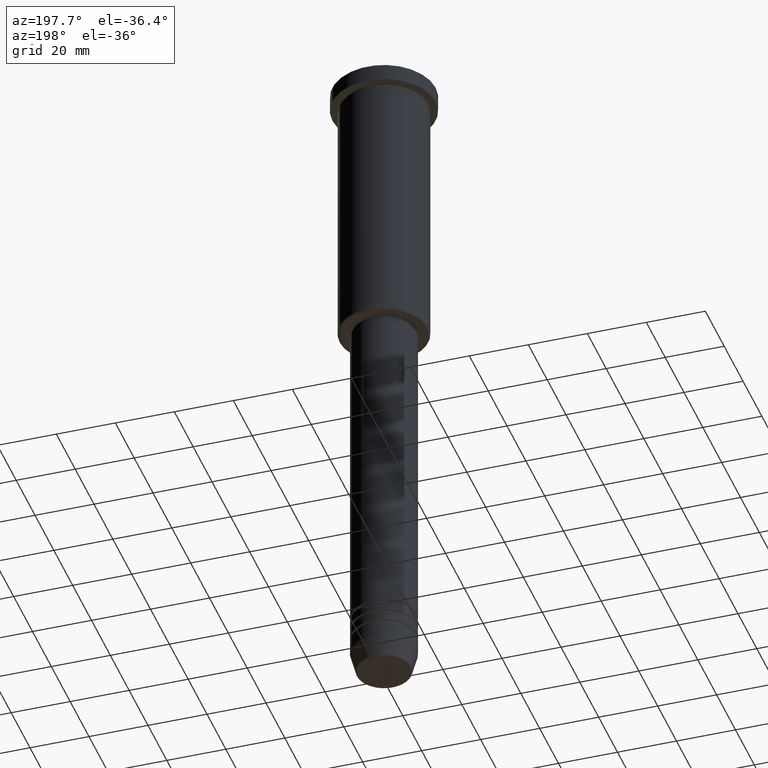
[diagram: clean part render]
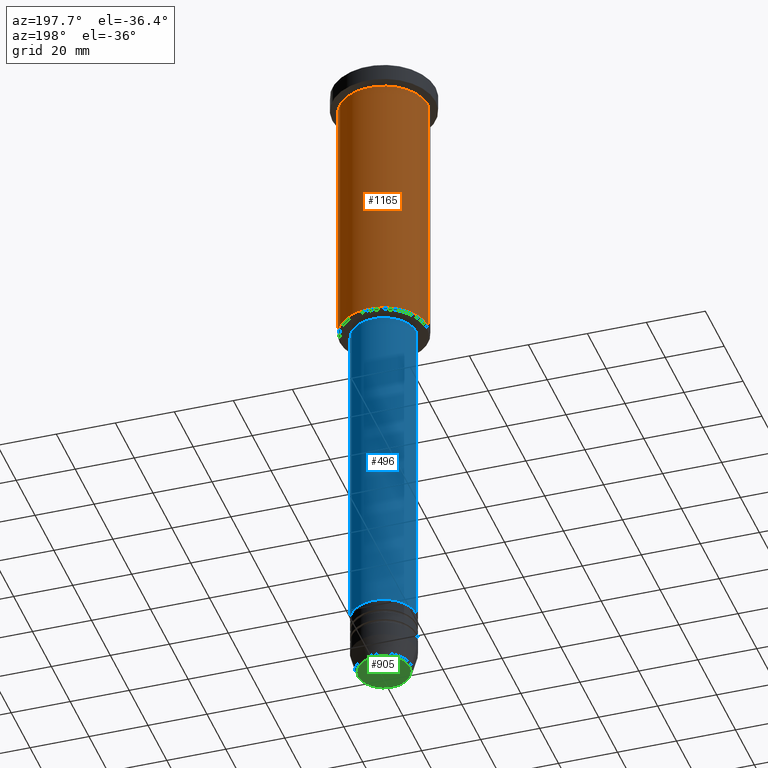
[diagram: same view with three faces highlighted in distinct colors, each labeled with its STEP entity id]
A machine part, auxiliary view with three faces highlighted in distinct colors.
Their STEP definitions:

[orange] entity #1165 — the highlighted cylindrical surface (partial cylindrical patch) has radius 15 mm, axis along (-0, -0, 1).
#32 = CARTESIAN_POINT ( 'NONE',  ( -15.00000000000000000, 1.836970198721029589E-15, 0.000000000000000000 ) ) ;
#51 = DIRECTION ( 'NONE',  ( -0.000000000000000000, -0.000000000000000000, 1.000000000000000000 ) ) ;
#158 = VECTOR ( 'NONE', #51, 1000.000000000000000 ) ;
#227 = AXIS2_PLACEMENT_3D ( 'NONE', #809, #1176, #714 ) ;
#281 = CARTESIAN_POINT ( 'NONE',  ( 0.000000000000000000, 0.000000000000000000, -95.49999999999995737 ) ) ;
#290 = DIRECTION ( 'NONE',  ( -0.000000000000000000, -0.000000000000000000, 1.000000000000000000 ) ) ;
#311 = AXIS2_PLACEMENT_3D ( 'NONE', #931, #987, #737 ) ;
#350 = VERTEX_POINT ( 'NONE', #386 ) ;
#379 = VECTOR ( 'NONE', #1163, 1000.000000000000000 ) ;
#386 = CARTESIAN_POINT ( 'NONE',  ( -15.00000000000000000, 1.836970198721029589E-15, -6.999999999999995559 ) ) ;
#401 = AXIS2_PLACEMENT_3D ( 'NONE', #281, #290, #947 ) ;
#448 = EDGE_CURVE ( 'NONE', #687, #719, #645, .T. ) ;
#480 = CARTESIAN_POINT ( 'NONE',  ( 15.00000000000000000, 0.000000000000000000, -95.49999999999995737 ) ) ;
#502 = ORIENTED_EDGE ( 'NONE', *, *, #934, .T. ) ;
#540 = FACE_OUTER_BOUND ( 'NONE', #815, .T. ) ;
#587 = CARTESIAN_POINT ( 'NONE',  ( -15.00000000000000000, 1.836970198721029589E-15, -95.49999999999995737 ) ) ;
#602 = ORIENTED_EDGE ( 'NONE', *, *, #874, .F. ) ;
#609 = CARTESIAN_POINT ( 'NONE',  ( 15.00000000000000000, 0.000000000000000000, 0.000000000000000000 ) ) ;
#645 = LINE ( 'NONE', #609, #379 ) ;
#681 = LINE ( 'NONE', #32, #158 ) ;
#682 = CARTESIAN_POINT ( 'NONE',  ( 15.00000000000000000, 0.000000000000000000, -6.999999999999995559 ) ) ;
#687 = VERTEX_POINT ( 'NONE', #480 ) ;
#692 = CIRCLE ( 'NONE', #401, 15.00000000000000000 ) ;
#714 = DIRECTION ( 'NONE',  ( 1.000000000000000000, 0.000000000000000000, 0.000000000000000000 ) ) ;
#719 = VERTEX_POINT ( 'NONE', #682 ) ;
#727 = VERTEX_POINT ( 'NONE', #587 ) ;
#735 = EDGE_CURVE ( 'NONE', #727, #350, #681, .T. ) ;
#737 = DIRECTION ( 'NONE',  ( 1.000000000000000000, 0.000000000000000000, 0.000000000000000000 ) ) ;
#746 = CIRCLE ( 'NONE', #227, 15.00000000000000000 ) ;
#809 = CARTESIAN_POINT ( 'NONE',  ( 0.000000000000000000, 0.000000000000000000, -6.999999999999995559 ) ) ;
#815 = EDGE_LOOP ( 'NONE', ( #502, #924, #602, #1024 ) ) ;
#874 = EDGE_CURVE ( 'NONE', #719, #350, #746, .T. ) ;
#924 = ORIENTED_EDGE ( 'NONE', *, *, #735, .T. ) ;
#931 = CARTESIAN_POINT ( 'NONE',  ( 0.000000000000000000, 0.000000000000000000, 0.000000000000000000 ) ) ;
#934 = EDGE_CURVE ( 'NONE', #687, #727, #692, .T. ) ;
#947 = DIRECTION ( 'NONE',  ( -1.000000000000000000, 0.000000000000000000, 0.000000000000000000 ) ) ;
#987 = DIRECTION ( 'NONE',  ( -0.000000000000000000, -0.000000000000000000, 1.000000000000000000 ) ) ;
#992 = CYLINDRICAL_SURFACE ( 'NONE', #311, 15.00000000000000000 ) ;
#1024 = ORIENTED_EDGE ( 'NONE', *, *, #448, .F. ) ;
#1163 = DIRECTION ( 'NONE',  ( -0.000000000000000000, -0.000000000000000000, 1.000000000000000000 ) ) ;
#1165 = ADVANCED_FACE ( 'NONE', ( #540 ), #992, .T. ) ;
#1176 = DIRECTION ( 'NONE',  ( -0.000000000000000000, -0.000000000000000000, 1.000000000000000000 ) ) ;

[blue] entity #496 — the highlighted cylindrical surface (edge-blend (fillet) strip) has radius 11 mm, axis along (-0, -0, 1).
#11 = VERTEX_POINT ( 'NONE', #613 ) ;
#59 = CARTESIAN_POINT ( 'NONE',  ( -11.00000000000000000, 1.347111479062088405E-15, -97.00000000000005684 ) ) ;
#95 = CARTESIAN_POINT ( 'NONE',  ( 0.000000000000000000, 0.000000000000000000, 0.000000000000000000 ) ) ;
#111 = ORIENTED_EDGE ( 'NONE', *, *, #200, .F. ) ;
#129 = EDGE_LOOP ( 'NONE', ( #995, #1132, #111, #703 ) ) ;
#159 = CIRCLE ( 'NONE', #913, 11.00000000000000000 ) ;
#162 = DIRECTION ( 'NONE',  ( -0.000000000000000000, -0.000000000000000000, 1.000000000000000000 ) ) ;
#187 = VECTOR ( 'NONE', #214, 1000.000000000000000 ) ;
#200 = EDGE_CURVE ( 'NONE', #317, #378, #451, .T. ) ;
#214 = DIRECTION ( 'NONE',  ( -0.000000000000000000, -0.000000000000000000, 1.000000000000000000 ) ) ;
#279 = FACE_OUTER_BOUND ( 'NONE', #129, .T. ) ;
#283 = CARTESIAN_POINT ( 'NONE',  ( 11.00000000000000000, 0.000000000000000000, -97.00000000000005684 ) ) ;
#285 = VECTOR ( 'NONE', #162, 1000.000000000000000 ) ;
#317 = VERTEX_POINT ( 'NONE', #283 ) ;
#378 = VERTEX_POINT ( 'NONE', #59 ) ;
#392 = DIRECTION ( 'NONE',  ( 1.000000000000000000, 0.000000000000000000, 0.000000000000000000 ) ) ;
#441 = DIRECTION ( 'NONE',  ( -0.000000000000000000, -0.000000000000000000, 1.000000000000000000 ) ) ;
#449 = DIRECTION ( 'NONE',  ( 1.000000000000000000, 0.000000000000000000, 0.000000000000000000 ) ) ;
#451 = CIRCLE ( 'NONE', #1135, 11.00000000000000000 ) ;
#468 = LINE ( 'NONE', #1109, #187 ) ;
#496 = ADVANCED_FACE ( 'NONE', ( #279 ), #944, .T. ) ;
#524 = AXIS2_PLACEMENT_3D ( 'NONE', #95, #646, #449 ) ;
#613 = CARTESIAN_POINT ( 'NONE',  ( 11.00000000000000000, 0.000000000000000000, -209.9999999999999432 ) ) ;
#646 = DIRECTION ( 'NONE',  ( -0.000000000000000000, -0.000000000000000000, 1.000000000000000000 ) ) ;
#668 = CARTESIAN_POINT ( 'NONE',  ( 0.000000000000000000, 0.000000000000000000, -97.00000000000005684 ) ) ;
#703 = ORIENTED_EDGE ( 'NONE', *, *, #925, .F. ) ;
#712 = CARTESIAN_POINT ( 'NONE',  ( -11.00000000000000000, 1.347111479062088405E-15, -209.9999999999999432 ) ) ;
#750 = EDGE_CURVE ( 'NONE', #1027, #378, #1063, .T. ) ;
#792 = CARTESIAN_POINT ( 'NONE',  ( 0.000000000000000000, 0.000000000000000000, -209.9999999999999432 ) ) ;
#875 = CARTESIAN_POINT ( 'NONE',  ( -11.00000000000000000, 1.347111479062088405E-15, 0.000000000000000000 ) ) ;
#913 = AXIS2_PLACEMENT_3D ( 'NONE', #792, #441, #1175 ) ;
#925 = EDGE_CURVE ( 'NONE', #11, #317, #468, .T. ) ;
#944 = CYLINDRICAL_SURFACE ( 'NONE', #524, 11.00000000000000000 ) ;
#995 = ORIENTED_EDGE ( 'NONE', *, *, #1003, .T. ) ;
#1003 = EDGE_CURVE ( 'NONE', #11, #1027, #159, .T. ) ;
#1027 = VERTEX_POINT ( 'NONE', #712 ) ;
#1045 = DIRECTION ( 'NONE',  ( -0.000000000000000000, -0.000000000000000000, 1.000000000000000000 ) ) ;
#1063 = LINE ( 'NONE', #875, #285 ) ;
#1109 = CARTESIAN_POINT ( 'NONE',  ( 11.00000000000000000, 0.000000000000000000, 0.000000000000000000 ) ) ;
#1132 = ORIENTED_EDGE ( 'NONE', *, *, #750, .T. ) ;
#1135 = AXIS2_PLACEMENT_3D ( 'NONE', #668, #1045, #392 ) ;
#1175 = DIRECTION ( 'NONE',  ( 1.000000000000000000, 0.000000000000000000, 0.000000000000000000 ) ) ;

[green] entity #905 — the highlighted planar face has unit normal (0, -0, 1).
#77 = VERTEX_POINT ( 'NONE', #882 ) ;
#113 = DIRECTION ( 'NONE',  ( 1.000000000000000000, 0.000000000000000000, 0.000000000000000000 ) ) ;
#195 = CARTESIAN_POINT ( 'NONE',  ( 0.000000000000000000, 0.000000000000000000, -231.0000000000000284 ) ) ;
#204 = CIRCLE ( 'NONE', #926, 8.740692158992656502 ) ;
#304 = DIRECTION ( 'NONE',  ( 0.000000000000000000, 0.000000000000000000, -1.000000000000000000 ) ) ;
#305 = EDGE_LOOP ( 'NONE', ( #986, #1106 ) ) ;
#325 = AXIS2_PLACEMENT_3D ( 'NONE', #195, #304, #797 ) ;
#356 = EDGE_CURVE ( 'NONE', #434, #77, #1138, .T. ) ;
#385 = DIRECTION ( 'NONE',  ( 0.000000000000000000, -0.000000000000000000, 1.000000000000000000 ) ) ;
#422 = DIRECTION ( 'NONE',  ( 0.000000000000000000, 0.000000000000000000, -1.000000000000000000 ) ) ;
#434 = VERTEX_POINT ( 'NONE', #504 ) ;
#439 = EDGE_CURVE ( 'NONE', #77, #434, #204, .T. ) ;
#504 = CARTESIAN_POINT ( 'NONE',  ( -8.740692158992656502, 1.099999016768739653E-15, -231.0000000000000284 ) ) ;
#585 = PLANE ( 'NONE',  #728 ) ;
#728 = AXIS2_PLACEMENT_3D ( 'NONE', #1023, #385, #113 ) ;
#791 = DIRECTION ( 'NONE',  ( 1.000000000000000000, 0.000000000000000000, 0.000000000000000000 ) ) ;
#797 = DIRECTION ( 'NONE',  ( 1.000000000000000000, 0.000000000000000000, 0.000000000000000000 ) ) ;
#882 = CARTESIAN_POINT ( 'NONE',  ( 8.740692158992656502, 0.000000000000000000, -231.0000000000000284 ) ) ;
#883 = CARTESIAN_POINT ( 'NONE',  ( 0.000000000000000000, 0.000000000000000000, -231.0000000000000284 ) ) ;
#905 = ADVANCED_FACE ( 'NONE', ( #1131 ), #585, .F. ) ;
#926 = AXIS2_PLACEMENT_3D ( 'NONE', #883, #422, #791 ) ;
#986 = ORIENTED_EDGE ( 'NONE', *, *, #439, .T. ) ;
#1023 = CARTESIAN_POINT ( 'NONE',  ( 0.000000000000000000, 0.000000000000000000, -231.0000000000000284 ) ) ;
#1106 = ORIENTED_EDGE ( 'NONE', *, *, #356, .T. ) ;
#1131 = FACE_OUTER_BOUND ( 'NONE', #305, .T. ) ;
#1138 = CIRCLE ( 'NONE', #325, 8.740692158992656502 ) ;